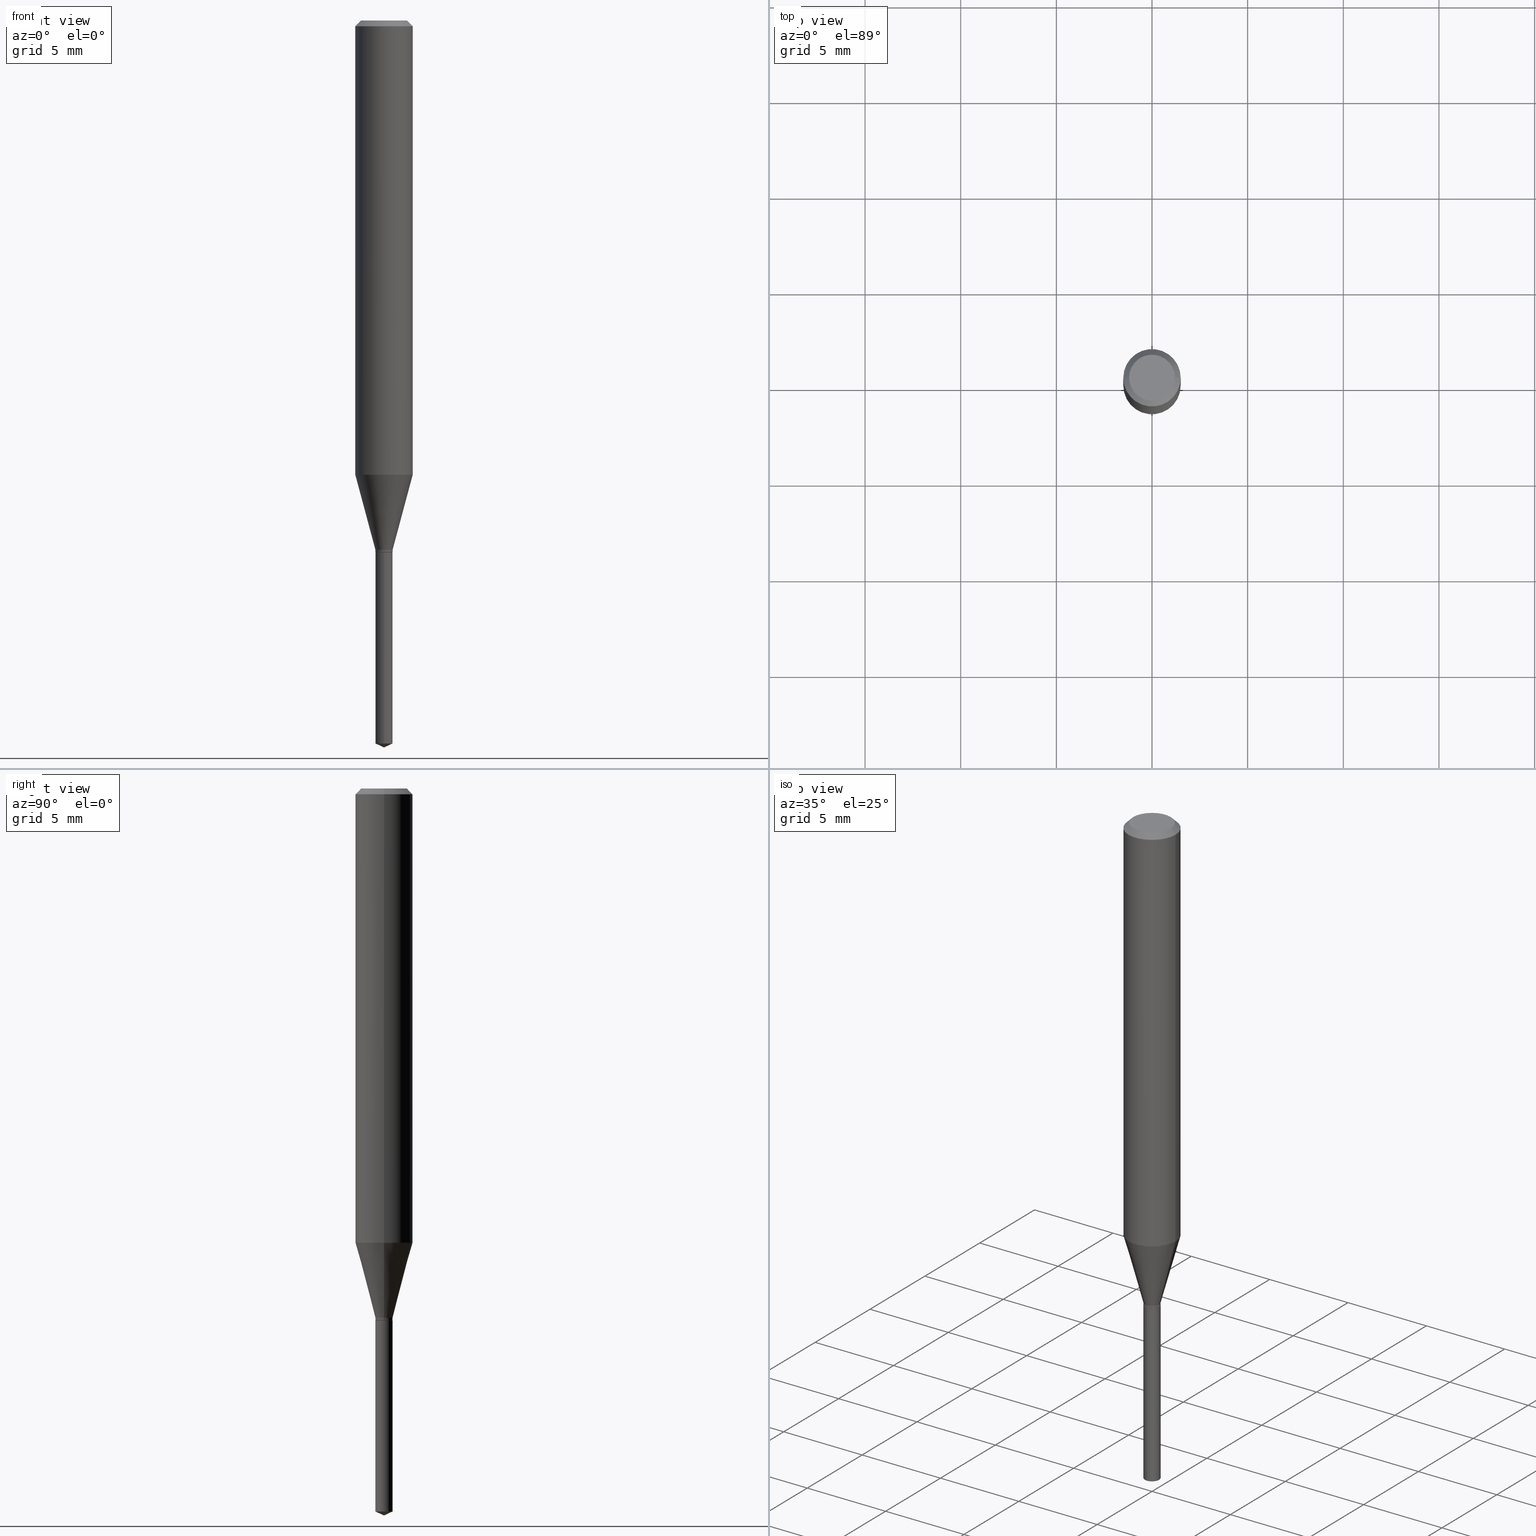
[diagram: canonical four-view strip — front | top / right | iso, engineering-drawing reading convention]
A machine part, canonical four-view strip (front | top / right | iso — engineering-drawing reading convention). The complete STEP part file that produces these views, byte-faithful:
ISO-10303-21;
HEADER;
FILE_DESCRIPTION (( 'STEP AP203' ),
    '1' );
FILE_NAME ('08317.STEP',
    '2024-04-24T14:17:30',
    ( '' ),
    ( '' ),
    'SwSTEP 2.0',
    'SolidWorks 2023',
    '' );
FILE_SCHEMA (( 'CONFIG_CONTROL_DESIGN' ));
ENDSEC;

DATA;
#1 = APPROVAL_PERSON_ORGANIZATION ( #456, #294, #237 ) ;
#2 = EDGE_LOOP ( 'NONE', ( #424, #267 ) ) ;
#3 = ORIENTED_EDGE ( 'NONE', *, *, #215, .F. ) ;
#4 = ORIENTED_EDGE ( 'NONE', *, *, #75, .F. ) ;
#5 = EDGE_CURVE ( 'NONE', #321, #193, #170, .T. ) ;
#6 = CALENDAR_DATE ( 2024, 24, 4 ) ;
#7 = ORIENTED_EDGE ( 'NONE', *, *, #345, .F. ) ;
#8 = CIRCLE ( 'NONE', #87, 0.01720000000000000001 ) ;
#9 = AXIS2_PLACEMENT_3D ( 'NONE', #214, #361, #328 ) ;
#10 = PERSON_AND_ORGANIZATION_ROLE ( 'creator' ) ;
#11 = DIRECTION ( 'NONE',  ( 1.000000000000000000, -6.982962677686271444E-15, 0.000000000000000000 ) ) ;
#12 = FACE_OUTER_BOUND ( 'NONE', #312, .T. ) ;
#13 = CYLINDRICAL_SURFACE ( 'NONE', #298, 0.05905000000000005383 ) ;
#14 = DIRECTION ( 'NONE',  ( -2.445468806185136597E-29, 3.491481338843145583E-15, 1.000000000000000000 ) ) ;
#15 = ADVANCED_FACE ( 'NONE', ( #427 ), #13, .T. ) ;
#16 = CARTESIAN_POINT ( 'NONE',  ( 2.663604623696850789E-29, -3.802921474267954047E-15, -1.089199999999999946 ) ) ;
#17 = CIRCLE ( 'NONE', #309, 0.05905000000000010935 ) ;
#18 = APPROVAL_PERSON_ORGANIZATION ( #347, #34, #86 ) ;
#19 = EDGE_CURVE ( 'NONE', #141, #238, #59, .T. ) ;
#20 = DIRECTION ( 'NONE',  ( -2.445468806185136597E-29, 3.491481338843145583E-15, 1.000000000000000000 ) ) ;
#21 = VERTEX_POINT ( 'NONE', #203 ) ;
#22 = FACE_OUTER_BOUND ( 'NONE', #319, .T. ) ;
#23 = FACE_OUTER_BOUND ( 'NONE', #416, .T. ) ;
#24 = DIRECTION ( 'NONE',  ( -2.445468806185136597E-29, 3.491481338843145583E-15, 1.000000000000000000 ) ) ;
#25 = CARTESIAN_POINT ( 'NONE',  ( 2.676565608369631794E-29, -3.821426325363822773E-15, -1.094499999999999806 ) ) ;
#26 = AXIS2_PLACEMENT_3D ( 'NONE', #28, #144, #182 ) ;
#27 = DIRECTION ( 'NONE',  ( 1.000000000000000000, -6.982962677686270655E-15, 0.000000000000000000 ) ) ;
#28 = CARTESIAN_POINT ( 'NONE',  ( 2.676565608369631794E-29, -3.821426325363822773E-15, -1.094499999999999806 ) ) ;
#29 = EDGE_CURVE ( 'NONE', #45, #377, #430, .T. ) ;
#30 = CALENDAR_DATE ( 2024, 24, 4 ) ;
#31 = FACE_OUTER_BOUND ( 'NONE', #121, .T. ) ;
#32 = FACE_OUTER_BOUND ( 'NONE', #410, .T. ) ;
#33 = CARTESIAN_POINT ( 'NONE',  ( -1.235984393950201427E-16, -0.01770000000000382379, -1.094499999999999806 ) ) ;
#34 = APPROVAL ( #81, 'UNSPECIFIED' ) ;
#35 = APPLICATION_PROTOCOL_DEFINITION ( 'international standard', 'config_control_design', 1994, #489 ) ;
#36 = AXIS2_PLACEMENT_3D ( 'NONE', #205, #14, #303 ) ;
#37 = PRODUCT_DEFINITION_FORMATION_WITH_SPECIFIED_SOURCE ( 'ANY', '', #448, .NOT_KNOWN. ) ;
#38 = LINE ( 'NONE', #443, #49 ) ;
#39 = ORIENTED_EDGE ( 'NONE', *, *, #404, .T. ) ;
#40 = VERTEX_POINT ( 'NONE', #355 ) ;
#41 = COORDINATED_UNIVERSAL_TIME_OFFSET ( 5, 0, .BEHIND. ) ;
#42 = ORIENTED_EDGE ( 'NONE', *, *, #413, .T. ) ;
#43 = CIRCLE ( 'NONE', #36, 0.01770000000000000046 ) ;
#44 = ORIENTED_EDGE ( 'NONE', *, *, #75, .T. ) ;
#45 = VERTEX_POINT ( 'NONE', #206 ) ;
#46 = CALENDAR_DATE ( 2024, 24, 4 ) ;
#47 = ORIENTED_EDGE ( 'NONE', *, *, #5, .F. ) ;
#48 = CONICAL_SURFACE ( 'NONE', #466, 0.01770000000000000046, 0.2617993877991498519 ) ;
#49 = VECTOR ( 'NONE', #115, 39.37007874015748143 ) ;
#50 = DIRECTION ( 'NONE',  ( -2.445460715294871217E-29, 3.491492925458510144E-15, 1.000000000000000000 ) ) ;
#51 = CC_DESIGN_SECURITY_CLASSIFICATION ( #459, ( #37 ) ) ;
#52 = DESIGN_CONTEXT ( 'detailed design', #489, 'design' ) ;
#53 = DIRECTION ( 'NONE',  ( 1.000000000000000000, -6.982962677686267499E-15, 0.000000000000000000 ) ) ;
#54 = EDGE_LOOP ( 'NONE', ( #82, #460, #125 ) ) ;
#55 = DIRECTION ( 'NONE',  ( -2.445468806185136877E-29, 3.491481338843145188E-15, 1.000000000000000000 ) ) ;
#56 = EDGE_LOOP ( 'NONE', ( #163, #455, #240 ) ) ;
#57 = PERSON ( 'UNSPECIFIED', 'UNSPECIFIED', 'UNSPECIFIED', ('UNSPECIFIED'), ('UNSPECIFIED'), ('UNSPECIFIED') ) ;
#58 = CARTESIAN_POINT ( 'NONE',  ( 0.01720000000000000001, -3.941533283420026163E-15, -1.094499999999999806 ) ) ;
#59 = LINE ( 'NONE', #103, #458 ) ;
#60 = ADVANCED_FACE ( 'NONE', ( #364 ), #278, .T. ) ;
#61 = VECTOR ( 'NONE', #369, 39.37007874015748854 ) ;
#62 = DIRECTION ( 'NONE',  ( -6.982962677686265133E-15, -1.000000000000000000, 0.000000000000000000 ) ) ;
#63 = DIRECTION ( 'NONE',  ( 1.000000000000000000, -6.982962677686265922E-15, 4.876176775795935793E-29 ) ) ;
#64 = DIRECTION ( 'NONE',  ( -2.445460715294871217E-29, 3.491492925458510144E-15, 1.000000000000000000 ) ) ;
#65 = CARTESIAN_POINT ( 'NONE',  ( 2.888098660104663328E-31, -4.123439461173779030E-17, -0.01181000000000006871 ) ) ;
#66 = CARTESIAN_POINT ( 'NONE',  ( 3.658671642415649744E-29, -5.223597202677443246E-15, -1.496099999999999985 ) ) ;
#67 = FACE_OUTER_BOUND ( 'NONE', #386, .T. ) ;
#68 = VECTOR ( 'NONE', #211, 39.37007874015748143 ) ;
#69 = CC_DESIGN_APPROVAL ( #294, ( #459 ) ) ;
#70 = CARTESIAN_POINT ( 'NONE',  ( -0.01770000000000000046, -3.677155410038416754E-15, -1.089199999999999946 ) ) ;
#71 = LINE ( 'NONE', #256, #265 ) ;
#72 = DIRECTION ( 'NONE',  ( 1.000000000000000000, -6.982962677686265922E-15, 4.876176775795935232E-29 ) ) ;
#73 = ADVANCED_FACE ( 'NONE', ( #251 ), #48, .T. ) ;
#74 = DIRECTION ( 'NONE',  ( -0.2588190451025211281, 5.211531920934547886E-15, 0.9659258262890679791 ) ) ;
#75 = EDGE_CURVE ( 'NONE', #292, #148, #228, .T. ) ;
#76 = CIRCLE ( 'NONE', #279, 0.01770000000000000046 ) ;
#77 = DIRECTION ( 'NONE',  ( 6.439704144417031142E-15, 0.9063077870366522681, 0.4226182617406943343 ) ) ;
#78 = CONICAL_SURFACE ( 'NONE', #275, 0.05904999999999999832, 0.7853981633974452814 ) ;
#79 = ORIENTED_EDGE ( 'NONE', *, *, #171, .F. ) ;
#80 = CC_DESIGN_PERSON_AND_ORGANIZATION_ASSIGNMENT ( #154, #164, ( #379 ) ) ;
#81 = APPROVAL_STATUS ( 'not_yet_approved' ) ;
#82 = ORIENTED_EDGE ( 'NONE', *, *, #426, .F. ) ;
#83 = APPROVAL_DATE_TIME ( #411, #294 ) ;
#84 = ORIENTED_EDGE ( 'NONE', *, *, #212, .T. ) ;
#85 = EDGE_LOOP ( 'NONE', ( #317, #452, #350, #338 ) ) ;
#86 = APPROVAL_ROLE ( '' ) ;
#87 = AXIS2_PLACEMENT_3D ( 'NONE', #25, #342, #487 ) ;
#88 = VECTOR ( 'NONE', #74, 39.37007874015748854 ) ;
#89 = ORIENTED_EDGE ( 'NONE', *, *, #454, .F. ) ;
#90 = PERSON_AND_ORGANIZATION ( #57, #106 ) ;
#91 = EDGE_LOOP ( 'NONE', ( #438, #274, #327, #231 ) ) ;
#92 = PERSON_AND_ORGANIZATION_ROLE ( 'classification_officer' ) ;
#93 = DIRECTION ( 'NONE',  ( -2.445468806185136597E-29, 3.491481338843145583E-15, 1.000000000000000000 ) ) ;
#94 = MANIFOLD_SOLID_BREP ( 'Body-Move/Copy2[2]', #259 ) ;
#95 = EDGE_CURVE ( 'NONE', #45, #213, #143, .T. ) ;
#96 = DIRECTION ( 'NONE',  ( 1.000000000000000000, -6.982962677686266711E-15, 4.876185090822587894E-29 ) ) ;
#97 = AXIS2_PLACEMENT_3D ( 'NONE', #184, #336, #112 ) ;
#98 = ORIENTED_EDGE ( 'NONE', *, *, #191, .T. ) ;
#99 = CARTESIAN_POINT ( 'NONE',  ( 2.676565608369631794E-29, -3.821426325363822773E-15, -1.094499999999999806 ) ) ;
#100 = CARTESIAN_POINT ( 'NONE',  ( -0.01770000000000000046, 1.257660642295377361E-16, -8.706515109751182648E-31 ) ) ;
#101 = CARTESIAN_POINT ( 'NONE',  ( 2.663604623696850789E-29, -3.802921474267954047E-15, -1.089199999999999946 ) ) ;
#102 = ADVANCED_FACE ( 'NONE', ( #23 ), #325, .F. ) ;
#103 = CARTESIAN_POINT ( 'NONE',  ( 0.05904999999999999832, -4.463468013801466955E-16, -0.01181000000000006871 ) ) ;
#104 = FACE_OUTER_BOUND ( 'NONE', #185, .T. ) ;
#105 = DIRECTION ( 'NONE',  ( 0.7071067811865453523, -7.319954787623248157E-15, -0.7071067811865496822 ) ) ;
#106 = ORGANIZATION ( 'UNSPECIFIED', 'UNSPECIFIED', '' ) ;
#107 = CARTESIAN_POINT ( 'NONE',  ( 3.638478665683164429E-29, -5.194792339183186324E-15, -1.487846354450656605 ) ) ;
#108 = CARTESIAN_POINT ( 'NONE',  ( 0.05905000000000005383, -4.123439461173744271E-16, 2.879382386107502672E-30 ) ) ;
#109 =( NAMED_UNIT ( * ) SI_UNIT ( $, .STERADIAN. ) SOLID_ANGLE_UNIT ( ) );
#110 = CARTESIAN_POINT ( 'NONE',  ( 0.04724000000000000421, -3.852183633974369345E-16, -3.380025165621689721E-19 ) ) ;
#111 = DIRECTION ( 'NONE',  ( 1.000000000000000000, -6.982962677686266711E-15, 4.876176775795935793E-29 ) ) ;
#112 = DIRECTION ( 'NONE',  ( 1.000000000000000000, -6.982962677686266711E-15, 0.000000000000000000 ) ) ;
#113 = ADVANCED_FACE ( 'NONE', ( #135 ), #179, .T. ) ;
#114 = CIRCLE ( 'NONE', #389, 0.01770000000000000046 ) ;
#115 = DIRECTION ( 'NONE',  ( -2.445460715294871217E-29, 3.491492925458510144E-15, 1.000000000000000000 ) ) ;
#116 = DIRECTION ( 'NONE',  ( 1.000000000000000000, -6.982962677686265922E-15, 4.876176775795935232E-29 ) ) ;
#117 = LINE ( 'NONE', #70, #88 ) ;
#118 = DIRECTION ( 'NONE',  ( -2.445468806185136597E-29, 3.491481338843145583E-15, 1.000000000000000000 ) ) ;
#119 = AXIS2_PLACEMENT_3D ( 'NONE', #258, #437, #155 ) ;
#120 = AXIS2_PLACEMENT_3D ( 'NONE', #470, #425, #356 ) ;
#121 = EDGE_LOOP ( 'NONE', ( #42, #122, #378, #89 ) ) ;
#122 = ORIENTED_EDGE ( 'NONE', *, *, #29, .T. ) ;
#123 = COORDINATED_UNIVERSAL_TIME_OFFSET ( 5, 0, .BEHIND. ) ;
#124 = EDGE_LOOP ( 'NONE', ( #7, #197, #239, #79 ) ) ;
#125 = ORIENTED_EDGE ( 'NONE', *, *, #307, .F. ) ;
#126 = VERTEX_POINT ( 'NONE', #401 ) ;
#127 = VERTEX_POINT ( 'NONE', #296 ) ;
#128 = AXIS2_PLACEMENT_3D ( 'NONE', #297, #480, #27 ) ;
#129 = ORIENTED_EDGE ( 'NONE', *, *, #368, .F. ) ;
#130 = EDGE_CURVE ( 'NONE', #281, #414, #17, .T. ) ;
#131 = DIRECTION ( 'NONE',  ( 1.000000000000000000, -6.982962677686266711E-15, 4.876176775795935793E-29 ) ) ;
#132 = CARTESIAN_POINT ( 'NONE',  ( -0.05905000000000010935, -2.844539538029139057E-15, -0.9348796991070267293 ) ) ;
#133 = VECTOR ( 'NONE', #50, 39.37007874015748143 ) ;
#134 = AXIS2_PLACEMENT_3D ( 'NONE', #176, #331, #207 ) ;
#135 = FACE_OUTER_BOUND ( 'NONE', #165, .T. ) ;
#136 = CARTESIAN_POINT ( 'NONE',  ( 3.638478665683164429E-29, -5.194792339183186324E-15, -1.487846354450656605 ) ) ;
#137 = ORIENTED_EDGE ( 'NONE', *, *, #334, .T. ) ;
#138 = ADVANCED_FACE ( 'NONE', ( #435 ), #484, .F. ) ;
#139 = LINE ( 'NONE', #178, #68 ) ;
#140 = EDGE_CURVE ( 'NONE', #148, #292, #8, .T. ) ;
#141 = VERTEX_POINT ( 'NONE', #110 ) ;
#142 = CARTESIAN_POINT ( 'NONE',  ( 8.265746106709734507E-48, -1.180129479067563789E-33, -3.380025165646692144E-19 ) ) ;
#143 = CIRCLE ( 'NONE', #406, 0.01770000000000000046 ) ;
#144 = DIRECTION ( 'NONE',  ( -2.445460715294871217E-29, 3.491492925458510144E-15, 1.000000000000000000 ) ) ;
#145 = AXIS2_PLACEMENT_3D ( 'NONE', #390, #324, #62 ) ;
#146 = LOCAL_TIME ( 10, 17, 30.00000000000000000, #41 ) ;
#147 = DIRECTION ( 'NONE',  ( -2.445460715294871217E-29, 3.491492925458510144E-15, 1.000000000000000000 ) ) ;
#148 = VERTEX_POINT ( 'NONE', #302 ) ;
#149 = LINE ( 'NONE', #108, #310 ) ;
#150 =( LENGTH_UNIT ( ) NAMED_UNIT ( * ) SI_UNIT ( $, .METRE. ) );
#151 = DIRECTION ( 'NONE',  ( -2.445468806185136597E-29, 3.491481338843145583E-15, 1.000000000000000000 ) ) ;
#152 = ORIENTED_EDGE ( 'NONE', *, *, #454, .T. ) ;
#153 = ORIENTED_EDGE ( 'NONE', *, *, #428, .T. ) ;
#154 = PERSON_AND_ORGANIZATION ( #57, #106 ) ;
#155 = DIRECTION ( 'NONE',  ( -1.000000000000000000, 6.982962677686265922E-15, -4.876176775795935793E-29 ) ) ;
#156 = FACE_OUTER_BOUND ( 'NONE', #446, .T. ) ;
#157 = DIRECTION ( 'NONE',  ( 0.7071067811865218156, -2.468850131081987665E-15, 0.7071067811865732189 ) ) ;
#158 = CYLINDRICAL_SURFACE ( 'NONE', #382, 0.05905000000000005383 ) ;
#159 = CC_DESIGN_DATE_AND_TIME_ASSIGNMENT ( #354, #198, ( #459 ) ) ;
#160 = ORIENTED_EDGE ( 'NONE', *, *, #457, .T. ) ;
#161 = CIRCLE ( 'NONE', #26, 0.01770000000000000046 ) ;
#162 = COORDINATED_UNIVERSAL_TIME_OFFSET ( 5, 0, .BEHIND. ) ;
#163 = ORIENTED_EDGE ( 'NONE', *, *, #252, .F. ) ;
#164 = PERSON_AND_ORGANIZATION_ROLE ( 'creator' ) ;
#165 = EDGE_LOOP ( 'NONE', ( #366, #447, #152, #473 ) ) ;
#166 = CC_DESIGN_PERSON_AND_ORGANIZATION_ASSIGNMENT ( #403, #488, ( #448 ) ) ;
#167 = EDGE_CURVE ( 'NONE', #292, #213, #71, .T. ) ;
#168 = CARTESIAN_POINT ( 'NONE',  ( 2.676565608369631794E-29, -3.821426325363822773E-15, -1.094499999999999806 ) ) ;
#169 = CYLINDRICAL_SURFACE ( 'NONE', #486, 0.01770000000000000046 ) ;
#170 = LINE ( 'NONE', #283, #133 ) ;
#171 = EDGE_CURVE ( 'NONE', #412, #238, #227, .T. ) ;
#172 = LINE ( 'NONE', #282, #300 ) ;
#173 = CONICAL_SURFACE ( 'NONE', #128, 0.01720000000000000001, 0.7853981633974119747 ) ;
#174 = DIRECTION ( 'NONE',  ( -2.445468806185136597E-29, 3.491481338843145583E-15, 1.000000000000000000 ) ) ;
#175 = ADVANCED_FACE ( 'NONE', ( #333 ), #360, .T. ) ;
#176 = CARTESIAN_POINT ( 'NONE',  ( -9.261931828548885815E-28, 1.322367415117763772E-13, 37.87397874015748300 ) ) ;
#177 = DIRECTION ( 'NONE',  ( 1.000000000000000000, -6.982962677686271444E-15, 0.000000000000000000 ) ) ;
#178 = CARTESIAN_POINT ( 'NONE',  ( -0.05904999999999999832, 3.711095515056362547E-16, -0.01181000000000006871 ) ) ;
#179 = CYLINDRICAL_SURFACE ( 'NONE', #199, 0.01770000000000000046 ) ;
#180 = CARTESIAN_POINT ( 'NONE',  ( 2.676565608369631794E-29, -3.821426325363822773E-15, -1.094499999999999806 ) ) ;
#181 = AXIS2_PLACEMENT_3D ( 'NONE', #65, #151, #433 ) ;
#182 = DIRECTION ( 'NONE',  ( -6.982962677686265133E-15, -1.000000000000000000, 0.000000000000000000 ) ) ;
#183 = ADVANCED_FACE ( 'NONE', ( #67 ), #236, .T. ) ;
#184 = CARTESIAN_POINT ( 'NONE',  ( 2.888098660104663328E-31, -4.123439461173779030E-17, -0.01181000000000006871 ) ) ;
#185 = EDGE_LOOP ( 'NONE', ( #420, #451, #272, #419 ) ) ;
#186 = CYLINDRICAL_SURFACE ( 'NONE', #439, 0.01770000000000000046 ) ;
#187 = CARTESIAN_POINT ( 'NONE',  ( 0.05904999999999999832, -4.535783407291118600E-16, -0.01181000000000006871 ) ) ;
#188 = VECTOR ( 'NONE', #77, 39.37007874015748143 ) ;
#189 = CC_DESIGN_APPROVAL ( #34, ( #37 ) ) ;
#190 = LINE ( 'NONE', #226, #323 ) ;
#191 = EDGE_CURVE ( 'NONE', #21, #414, #374, .T. ) ;
#192 = DATE_AND_TIME ( #273, #469 ) ;
#193 = VERTEX_POINT ( 'NONE', #33 ) ;
#194 = AXIS2_PLACEMENT_3D ( 'NONE', #142, #24, #286 ) ;
#195 = EDGE_LOOP ( 'NONE', ( #84, #160 ) ) ;
#196 = ORIENTED_EDGE ( 'NONE', *, *, #167, .F. ) ;
#197 = ORIENTED_EDGE ( 'NONE', *, *, #130, .T. ) ;
#198 = DATE_TIME_ROLE ( 'classification_date' ) ;
#199 = AXIS2_PLACEMENT_3D ( 'NONE', #276, #93, #72 ) ;
#200 = AXIS2_PLACEMENT_3D ( 'NONE', #299, #395, #225 ) ;
#201 = ORIENTED_EDGE ( 'NONE', *, *, #140, .F. ) ;
#202 = DIRECTION ( 'NONE',  ( -6.982962677686265133E-15, -1.000000000000000000, 0.000000000000000000 ) ) ;
#203 = CARTESIAN_POINT ( 'NONE',  ( 0.01770000000000000046, -3.926519913663001232E-15, -1.089199999999999946 ) ) ;
#204 = PRODUCT_RELATED_PRODUCT_CATEGORY ( 'detail', '', ( #448 ) ) ;
#205 = CARTESIAN_POINT ( 'NONE',  ( 2.675342873966538993E-29, -3.819680584694400481E-15, -1.093999999999999861 ) ) ;
#206 = CARTESIAN_POINT ( 'NONE',  ( -0.01770000000000000046, -3.685534965251639971E-15, -1.093999999999999861 ) ) ;
#207 = DIRECTION ( 'NONE',  ( -6.982962677686266711E-15, -1.000000000000000000, 3.520397390770449137E-15 ) ) ;
#208 = AXIS2_PLACEMENT_3D ( 'NONE', #291, #241, #53 ) ;
#209 = CARTESIAN_POINT ( 'NONE',  ( 2.663604623696850789E-29, -3.802921474267954047E-15, -1.089199999999999946 ) ) ;
#210 = CC_DESIGN_DATE_AND_TIME_ASSIGNMENT ( #417, #268, ( #379 ) ) ;
#211 = DIRECTION ( 'NONE',  ( -0.7071067811865453523, 2.468850131082234184E-15, -0.7071067811865496822 ) ) ;
#212 = EDGE_CURVE ( 'NONE', #193, #40, #161, .T. ) ;
#213 = VERTEX_POINT ( 'NONE', #481 ) ;
#214 = CARTESIAN_POINT ( 'NONE',  ( 2.676565608369631794E-29, -3.821426325363822773E-15, -1.094499999999999806 ) ) ;
#215 = EDGE_CURVE ( 'NONE', #414, #238, #149, .T. ) ;
#216 = DIRECTION ( 'NONE',  ( -2.445468806185136597E-29, 3.491481338843145583E-15, 1.000000000000000000 ) ) ;
#217 = DIMENSIONAL_EXPONENTS ( 1.000000000000000000, 0.000000000000000000, 0.000000000000000000, 0.000000000000000000, 0.000000000000000000, 0.000000000000000000, 0.000000000000000000 ) ;
#218 = CARTESIAN_POINT ( 'NONE',  ( 0.000000000000000000, 0.000000000000000000, 0.000000000000000000 ) ) ;
#219 = DIRECTION ( 'NONE',  ( 2.445468806185136597E-29, -3.491481338843145583E-15, -1.000000000000000000 ) ) ;
#220 = CIRCLE ( 'NONE', #97, 0.05904999999999999832 ) ;
#221 = LOCAL_TIME ( 10, 17, 30.00000000000000000, #295 ) ;
#222 = APPLICATION_PROTOCOL_DEFINITION ( 'international standard', 'config_control_design', 1994, #462 ) ;
#223 = DIRECTION ( 'NONE',  ( -1.000000000000000000, 6.982962677686266711E-15, 0.000000000000000000 ) ) ;
#224 = DIRECTION ( 'NONE',  ( 0.000000000000000000, 0.000000000000000000, 1.000000000000000000 ) ) ;
#225 = DIRECTION ( 'NONE',  ( -6.982962677686266711E-15, -1.000000000000000000, 3.520397390770449137E-15 ) ) ;
#226 = CARTESIAN_POINT ( 'NONE',  ( 0.01770000000000000046, -1.235984393950469147E-16, 8.630832893158805849E-31 ) ) ;
#227 = CIRCLE ( 'NONE', #181, 0.05904999999999999832 ) ;
#228 = CIRCLE ( 'NONE', #330, 0.01720000000000000001 ) ;
#229 = EDGE_LOOP ( 'NONE', ( #408, #137, #98, #245 ) ) ;
#230 = CARTESIAN_POINT ( 'NONE',  ( 2.676565608369631794E-29, -3.821426325363822773E-15, -1.094499999999999806 ) ) ;
#231 = ORIENTED_EDGE ( 'NONE', *, *, #191, .F. ) ;
#232 = EDGE_CURVE ( 'NONE', #238, #412, #220, .T. ) ;
#233 = SHAPE_DEFINITION_REPRESENTATION ( #247, #453 ) ;
#234 = ORIENTED_EDGE ( 'NONE', *, *, #413, .F. ) ;
#235 = VECTOR ( 'NONE', #277, 39.37007874015748143 ) ;
#236 = CONICAL_SURFACE ( 'NONE', #431, 0.05904999999999999832, 0.7853981633974452814 ) ;
#237 = APPROVAL_ROLE ( '' ) ;
#238 = VERTEX_POINT ( 'NONE', #187 ) ;
#239 = ORIENTED_EDGE ( 'NONE', *, *, #215, .T. ) ;
#240 = ORIENTED_EDGE ( 'NONE', *, *, #402, .F. ) ;
#241 = DIRECTION ( 'NONE',  ( -2.445468806185136597E-29, 3.491481338843145583E-15, 1.000000000000000000 ) ) ;
#242 = CC_DESIGN_PERSON_AND_ORGANIZATION_ASSIGNMENT ( #418, #92, ( #459 ) ) ;
#243 = ORIENTED_EDGE ( 'NONE', *, *, #313, .F. ) ;
#244 = DIRECTION ( 'NONE',  ( -6.982962677686265133E-15, -1.000000000000000000, 0.000000000000000000 ) ) ;
#245 = ORIENTED_EDGE ( 'NONE', *, *, #130, .F. ) ;
#246 = LINE ( 'NONE', #464, #353 ) ;
#247 = PRODUCT_DEFINITION_SHAPE ( 'NONE', 'NONE',  #379 ) ;
#248 = DIRECTION ( 'NONE',  ( 1.000000000000000000, -6.982962677686270655E-15, 0.000000000000000000 ) ) ;
#249 = CYLINDRICAL_SURFACE ( 'NONE', #145, 0.01770000000000000046 ) ;
#250 = CIRCLE ( 'NONE', #467, 0.01770000000000000046 ) ;
#251 = FACE_OUTER_BOUND ( 'NONE', #229, .T. ) ;
#252 = EDGE_CURVE ( 'NONE', #126, #321, #289, .T. ) ;
#253 = MANIFOLD_SOLID_BREP ( 'Body-Move/Copy2[1]', #396 ) ;
#254 = ADVANCED_FACE ( 'NONE', ( #31 ), #186, .T. ) ;
#255 = DIRECTION ( 'NONE',  ( -1.000000000000000000, 6.982962677686266711E-15, 0.000000000000000000 ) ) ;
#256 = CARTESIAN_POINT ( 'NONE',  ( 0.01720000000000000001, -3.941533283420026163E-15, -1.094499999999999806 ) ) ;
#257 = APPROVAL_ROLE ( '' ) ;
#258 = CARTESIAN_POINT ( 'NONE',  ( 4.132873053354867254E-48, -5.900647395337818946E-34, -1.690012582823346072E-19 ) ) ;
#259 = CLOSED_SHELL ( 'NONE', ( #468, #183, #461, #60, #254, #113, #73, #15, #270, #138, #102, #318 ) ) ;
#260 = DIRECTION ( 'NONE',  ( -6.328713451373376478E-15, -0.9063077870366493816, 0.4226182617407006070 ) ) ;
#261 = CIRCLE ( 'NONE', #208, 0.05905000000000010935 ) ;
#262 =( NAMED_UNIT ( * ) PLANE_ANGLE_UNIT ( ) SI_UNIT ( $, .RADIAN. ) );
#263 = FACE_OUTER_BOUND ( 'NONE', #85, .T. ) ;
#264 = LENGTH_MEASURE_WITH_UNIT ( LENGTH_MEASURE( 0.02539999999999999897 ), #150 );
#265 = VECTOR ( 'NONE', #157, 39.37007874015748143 ) ;
#266 = APPROVAL_PERSON_ORGANIZATION ( #434, #304, #257 ) ;
#267 = ORIENTED_EDGE ( 'NONE', *, *, #368, .T. ) ;
#268 = DATE_TIME_ROLE ( 'creation_date' ) ;
#269 = UNCERTAINTY_MEASURE_WITH_UNIT (LENGTH_MEASURE( 1.000000000000000082E-05 ), #441, 'distance_accuracy_value', 'NONE');
#270 = ADVANCED_FACE ( 'NONE', ( #263 ), #78, .T. ) ;
#271 = APPROVAL_STATUS ( 'not_yet_approved' ) ;
#272 = ORIENTED_EDGE ( 'NONE', *, *, #167, .T. ) ;
#273 = CALENDAR_DATE ( 2024, 24, 4 ) ;
#274 = ORIENTED_EDGE ( 'NONE', *, *, #450, .T. ) ;
#275 = AXIS2_PLACEMENT_3D ( 'NONE', #387, #367, #255 ) ;
#276 = CARTESIAN_POINT ( 'NONE',  ( 0.000000000000000000, 0.000000000000000000, 0.000000000000000000 ) ) ;
#277 = DIRECTION ( 'NONE',  ( -2.445468806185136877E-29, 3.491481338843145188E-15, 1.000000000000000000 ) ) ;
#278 = CONICAL_SURFACE ( 'NONE', #315, 0.01770000000000000046, 0.2617993877991498519 ) ;
#279 = AXIS2_PLACEMENT_3D ( 'NONE', #136, #64, #472 ) ;
#280 = CARTESIAN_POINT ( 'NONE',  ( 8.265746106709734507E-48, -1.180129479067563789E-33, -3.380025165646692144E-19 ) ) ;
#281 = VERTEX_POINT ( 'NONE', #132 ) ;
#282 = CARTESIAN_POINT ( 'NONE',  ( -0.01720000000000000001, -3.699212974813084802E-15, -1.094499999999999806 ) ) ;
#283 = CARTESIAN_POINT ( 'NONE',  ( -1.235984393950201427E-16, -0.01770000000000382379, -1.094499999999999806 ) ) ;
#284 = DIRECTION ( 'NONE',  ( -0.7071067811865218156, 7.493145998870261075E-15, 0.7071067811865732189 ) ) ;
#285 = DIRECTION ( 'NONE',  ( 1.000000000000000000, -6.982962677686271444E-15, 0.000000000000000000 ) ) ;
#286 = DIRECTION ( 'NONE',  ( 1.000000000000000000, -6.982962677686266711E-15, 4.876185090822587894E-29 ) ) ;
#287 = AXIS2_PLACEMENT_3D ( 'NONE', #280, #423, #96 ) ;
#288 = CONICAL_SURFACE ( 'NONE', #332, 0.01720000000000000001, 0.7853981633974119747 ) ;
#289 = LINE ( 'NONE', #373, #421 ) ;
#290 = CC_DESIGN_APPROVAL ( #304, ( #379 ) ) ;
#291 = CARTESIAN_POINT ( 'NONE',  ( 2.286219141701980490E-29, -3.264115023495478945E-15, -0.9348796991070267293 ) ) ;
#292 = VERTEX_POINT ( 'NONE', #58 ) ;
#293 = DIRECTION ( 'NONE',  ( -2.445468806185136877E-29, 3.491481338843145188E-15, 1.000000000000000000 ) ) ;
#294 = APPROVAL ( #271, 'UNSPECIFIED' ) ;
#295 = COORDINATED_UNIVERSAL_TIME_OFFSET ( 5, 0, .BEHIND. ) ;
#296 = CARTESIAN_POINT ( 'NONE',  ( -0.04724000000000000421, 3.504923541997677355E-16, -3.380025165670481712E-19 ) ) ;
#297 = CARTESIAN_POINT ( 'NONE',  ( 2.676565608369631794E-29, -3.821426325363822773E-15, -1.094499999999999806 ) ) ;
#298 = AXIS2_PLACEMENT_3D ( 'NONE', #465, #174, #131 ) ;
#299 = CARTESIAN_POINT ( 'NONE',  ( -9.261931828548885815E-28, 1.322367415117763772E-13, 37.87397874015748300 ) ) ;
#300 = VECTOR ( 'NONE', #284, 39.37007874015748143 ) ;
#301 = MECHANICAL_CONTEXT ( 'NONE', #462, 'mechanical' ) ;
#302 = CARTESIAN_POINT ( 'NONE',  ( -0.01720000000000000001, -3.696563747638974390E-15, -1.094499999999999806 ) ) ;
#303 = DIRECTION ( 'NONE',  ( 1.000000000000000000, -6.982962677686271444E-15, 0.000000000000000000 ) ) ;
#304 = APPROVAL ( #397, 'UNSPECIFIED' ) ;
#305 = EDGE_CURVE ( 'NONE', #148, #45, #172, .T. ) ;
#306 = ORIENTED_EDGE ( 'NONE', *, *, #305, .T. ) ;
#307 = EDGE_CURVE ( 'NONE', #388, #321, #76, .T. ) ;
#308 = CALENDAR_DATE ( 2024, 24, 4 ) ;
#309 = AXIS2_PLACEMENT_3D ( 'NONE', #372, #216, #394 ) ;
#310 = VECTOR ( 'NONE', #293, 39.37007874015748143 ) ;
#311 = PERSON_AND_ORGANIZATION ( #57, #106 ) ;
#312 = EDGE_LOOP ( 'NONE', ( #391, #471, #482, #314 ) ) ;
#313 = EDGE_CURVE ( 'NONE', #127, #412, #139, .T. ) ;
#314 = ORIENTED_EDGE ( 'NONE', *, *, #457, .F. ) ;
#315 = AXIS2_PLACEMENT_3D ( 'NONE', #209, #359, #11 ) ;
#316 =( GEOMETRIC_REPRESENTATION_CONTEXT ( 3 ) GLOBAL_UNCERTAINTY_ASSIGNED_CONTEXT ( ( #269 ) ) GLOBAL_UNIT_ASSIGNED_CONTEXT ( ( #441, #262, #109 ) ) REPRESENTATION_CONTEXT ( 'NONE', 'WORKASPACE' ) );
#317 = ORIENTED_EDGE ( 'NONE', *, *, #19, .F. ) ;
#318 = ADVANCED_FACE ( 'NONE', ( #104 ), #288, .T. ) ;
#319 = EDGE_LOOP ( 'NONE', ( #352, #153, #381, #47 ) ) ;
#320 = DIRECTION ( 'NONE',  ( -2.445460715294871217E-29, 3.491492925458510144E-15, 1.000000000000000000 ) ) ;
#321 = VERTEX_POINT ( 'NONE', #393 ) ;
#322 = AXIS2_PLACEMENT_3D ( 'NONE', #463, #475, #63 ) ;
#323 = VECTOR ( 'NONE', #400, 39.37007874015748143 ) ;
#324 = DIRECTION ( 'NONE',  ( -2.445460715294871217E-29, 3.491492925458510144E-15, 1.000000000000000000 ) ) ;
#325 = PLANE ( 'NONE',  #322 ) ;
#326 = DIRECTION ( 'NONE',  ( 1.000000000000000000, -6.982962677686271444E-15, 0.000000000000000000 ) ) ;
#327 = ORIENTED_EDGE ( 'NONE', *, *, #404, .F. ) ;
#328 = DIRECTION ( 'NONE',  ( 6.982962677686265922E-15, 1.000000000000000000, -3.491492925458510144E-15 ) ) ;
#329 = DIRECTION ( 'NONE',  ( -2.445468806185136597E-29, 3.491481338843145583E-15, 1.000000000000000000 ) ) ;
#330 = AXIS2_PLACEMENT_3D ( 'NONE', #168, #384, #248 ) ;
#331 = DIRECTION ( 'NONE',  ( -2.445460715294871217E-29, 3.491492925458510144E-15, 1.000000000000000000 ) ) ;
#332 = AXIS2_PLACEMENT_3D ( 'NONE', #180, #358, #365 ) ;
#333 = FACE_OUTER_BOUND ( 'NONE', #54, .T. ) ;
#334 = EDGE_CURVE ( 'NONE', #377, #21, #371, .T. ) ;
#335 = LINE ( 'NONE', #66, #188 ) ;
#336 = DIRECTION ( 'NONE',  ( -2.445468806185136597E-29, 3.491481338843145583E-15, 1.000000000000000000 ) ) ;
#337 = ADVANCED_FACE ( 'NONE', ( #383 ), #349, .T. ) ;
#338 = ORIENTED_EDGE ( 'NONE', *, *, #171, .T. ) ;
#339 = DATE_AND_TIME ( #30, #221 ) ;
#340 = ADVANCED_FACE ( 'NONE', ( #477 ), #429, .F. ) ;
#341 = CARTESIAN_POINT ( 'NONE',  ( 0.000000000000000000, 0.000000000000000000, 0.000000000000000000 ) ) ;
#342 = DIRECTION ( 'NONE',  ( -2.445468806185136597E-29, 3.491481338843145583E-15, 1.000000000000000000 ) ) ;
#343 = DIRECTION ( 'NONE',  ( -6.982962677686265133E-15, -1.000000000000000000, 0.000000000000000000 ) ) ;
#344 = EDGE_CURVE ( 'NONE', #21, #377, #250, .T. ) ;
#345 = EDGE_CURVE ( 'NONE', #281, #412, #246, .T. ) ;
#346 = CARTESIAN_POINT ( 'NONE',  ( 0.000000000000000000, 0.000000000000000000, 0.000000000000000000 ) ) ;
#347 = PERSON_AND_ORGANIZATION ( #57, #106 ) ;
#348 = ORIENTED_EDGE ( 'NONE', *, *, #345, .T. ) ;
#349 = CONICAL_SURFACE ( 'NONE', #134, 84.42940631927444883, 1.134464013796316451 ) ;
#350 = ORIENTED_EDGE ( 'NONE', *, *, #313, .T. ) ;
#351 = ORIENTED_EDGE ( 'NONE', *, *, #232, .T. ) ;
#352 = ORIENTED_EDGE ( 'NONE', *, *, #402, .T. ) ;
#353 = VECTOR ( 'NONE', #55, 39.37007874015748143 ) ;
#354 = DATE_AND_TIME ( #6, #362 ) ;
#355 = CARTESIAN_POINT ( 'NONE',  ( 1.257660642295741470E-16, 0.01769999999999617712, -1.094499999999999806 ) ) ;
#356 = DIRECTION ( 'NONE',  ( 1.000000000000000000, -6.982962677686271444E-15, 0.000000000000000000 ) ) ;
#357 = DIRECTION ( 'NONE',  ( -2.445468806185136597E-29, 3.491481338843145583E-15, 1.000000000000000000 ) ) ;
#358 = DIRECTION ( 'NONE',  ( -2.445468806185136597E-29, 3.491481338843145583E-15, 1.000000000000000000 ) ) ;
#359 = DIRECTION ( 'NONE',  ( -2.445468806185136597E-29, 3.491481338843145583E-15, 1.000000000000000000 ) ) ;
#360 = CONICAL_SURFACE ( 'NONE', #200, 84.42940631927444883, 1.134464013796316451 ) ;
#361 = DIRECTION ( 'NONE',  ( 2.445460715294871217E-29, -3.491492925458510144E-15, -1.000000000000000000 ) ) ;
#362 = LOCAL_TIME ( 10, 17, 30.00000000000000000, #123 ) ;
#363 = ADVANCED_FACE ( 'NONE', ( #22 ), #249, .T. ) ;
#364 = FACE_OUTER_BOUND ( 'NONE', #91, .T. ) ;
#365 = DIRECTION ( 'NONE',  ( 1.000000000000000000, -6.982962677686270655E-15, 0.000000000000000000 ) ) ;
#366 = ORIENTED_EDGE ( 'NONE', *, *, #29, .F. ) ;
#367 = DIRECTION ( 'NONE',  ( 2.445468806185136597E-29, -3.491481338843145583E-15, -1.000000000000000000 ) ) ;
#368 = EDGE_CURVE ( 'NONE', #141, #127, #476, .T. ) ;
#369 = DIRECTION ( 'NONE',  ( 0.2588190451025211281, 1.565188264969622954E-15, 0.9659258262890679791 ) ) ;
#370 = DIRECTION ( 'NONE',  ( -2.445460715294871217E-29, 3.491492925458510144E-15, 1.000000000000000000 ) ) ;
#371 = CIRCLE ( 'NONE', #120, 0.01770000000000000046 ) ;
#372 = CARTESIAN_POINT ( 'NONE',  ( 2.286219141701980490E-29, -3.264115023495478945E-15, -0.9348796991070267293 ) ) ;
#373 = CARTESIAN_POINT ( 'NONE',  ( 3.658653776152657051E-29, -5.223622565778476142E-15, -1.496099999999999985 ) ) ;
#374 = LINE ( 'NONE', #479, #61 ) ;
#375 = ORIENTED_EDGE ( 'NONE', *, *, #19, .T. ) ;
#376 = ORIENTED_EDGE ( 'NONE', *, *, #232, .F. ) ;
#377 = VERTEX_POINT ( 'NONE', #474 ) ;
#378 = ORIENTED_EDGE ( 'NONE', *, *, #344, .F. ) ;
#379 = PRODUCT_DEFINITION ( 'UNKNOWN', '', #37, #52 ) ;
#380 = EDGE_CURVE ( 'NONE', #127, #141, #398, .T. ) ;
#381 = ORIENTED_EDGE ( 'NONE', *, *, #212, .F. ) ;
#382 = AXIS2_PLACEMENT_3D ( 'NONE', #218, #118, #111 ) ;
#383 = FACE_OUTER_BOUND ( 'NONE', #56, .T. ) ;
#384 = DIRECTION ( 'NONE',  ( -2.445468806185136597E-29, 3.491481338843145583E-15, 1.000000000000000000 ) ) ;
#385 = CARTESIAN_POINT ( 'NONE',  ( -0.05904999999999999832, -1.233099223587268252E-15, -0.01181000000000006871 ) ) ;
#386 = EDGE_LOOP ( 'NONE', ( #129, #375, #351, #243 ) ) ;
#387 = CARTESIAN_POINT ( 'NONE',  ( 2.888098660104663328E-31, -4.123439461173779030E-17, -0.01181000000000006871 ) ) ;
#388 = VERTEX_POINT ( 'NONE', #432 ) ;
#389 = AXIS2_PLACEMENT_3D ( 'NONE', #230, #370, #343 ) ;
#390 = CARTESIAN_POINT ( 'NONE',  ( 2.676565608369631794E-29, -3.821426325363822773E-15, -1.094499999999999806 ) ) ;
#391 = ORIENTED_EDGE ( 'NONE', *, *, #428, .F. ) ;
#392 = CARTESIAN_POINT ( 'NONE',  ( 2.675342873966538993E-29, -3.819680584694400481E-15, -1.093999999999999861 ) ) ;
#393 = CARTESIAN_POINT ( 'NONE',  ( -1.235984393950105285E-16, -0.01770000000000519769, -1.487846354450656605 ) ) ;
#394 = DIRECTION ( 'NONE',  ( 1.000000000000000000, -6.982962677686267499E-15, 0.000000000000000000 ) ) ;
#395 = DIRECTION ( 'NONE',  ( -2.445460715294871217E-29, 3.491492925458510144E-15, 1.000000000000000000 ) ) ;
#396 = CLOSED_SHELL ( 'NONE', ( #363, #337, #175, #405, #340 ) ) ;
#397 = APPROVAL_STATUS ( 'not_yet_approved' ) ;
#398 = CIRCLE ( 'NONE', #194, 0.04724000000000000421 ) ;
#399 = CARTESIAN_POINT ( 'NONE',  ( 2.888098660104663328E-31, -4.123439461173779030E-17, -0.01181000000000006871 ) ) ;
#400 = DIRECTION ( 'NONE',  ( -2.445468806185136877E-29, 3.491481338843145188E-15, 1.000000000000000000 ) ) ;
#401 = CARTESIAN_POINT ( 'NONE',  ( 3.658653776152655930E-29, -5.223622565778476142E-15, -1.496099999999999985 ) ) ;
#402 = EDGE_CURVE ( 'NONE', #321, #388, #415, .T. ) ;
#403 = PERSON_AND_ORGANIZATION ( #57, #106 ) ;
#404 = EDGE_CURVE ( 'NONE', #414, #281, #261, .T. ) ;
#405 = ADVANCED_FACE ( 'NONE', ( #12 ), #169, .T. ) ;
#406 = AXIS2_PLACEMENT_3D ( 'NONE', #392, #357, #177 ) ;
#407 = AXIS2_PLACEMENT_3D ( 'NONE', #107, #147, #202 ) ;
#408 = ORIENTED_EDGE ( 'NONE', *, *, #450, .F. ) ;
#409 = COORDINATED_UNIVERSAL_TIME_OFFSET ( 5, 0, .BEHIND. ) ;
#410 = EDGE_LOOP ( 'NONE', ( #44, #306, #234, #196 ) ) ;
#411 = DATE_AND_TIME ( #46, #146 ) ;
#412 = VERTEX_POINT ( 'NONE', #385 ) ;
#413 = EDGE_CURVE ( 'NONE', #213, #45, #43, .T. ) ;
#414 = VERTEX_POINT ( 'NONE', #485 ) ;
#415 = CIRCLE ( 'NONE', #407, 0.01770000000000000046 ) ;
#416 = EDGE_LOOP ( 'NONE', ( #4, #201 ) ) ;
#417 = DATE_AND_TIME ( #308, #422 ) ;
#418 = PERSON_AND_ORGANIZATION ( #57, #106 ) ;
#419 = ORIENTED_EDGE ( 'NONE', *, *, #95, .F. ) ;
#420 = ORIENTED_EDGE ( 'NONE', *, *, #305, .F. ) ;
#421 = VECTOR ( 'NONE', #260, 39.37007874015748143 ) ;
#422 = LOCAL_TIME ( 10, 17, 30.00000000000000000, #162 ) ;
#423 = DIRECTION ( 'NONE',  ( -2.445468806185136597E-29, 3.491481338843145583E-15, 1.000000000000000000 ) ) ;
#424 = ORIENTED_EDGE ( 'NONE', *, *, #380, .T. ) ;
#425 = DIRECTION ( 'NONE',  ( -2.445468806185136597E-29, 3.491481338843145583E-15, 1.000000000000000000 ) ) ;
#426 = EDGE_CURVE ( 'NONE', #126, #388, #335, .T. ) ;
#427 = FACE_OUTER_BOUND ( 'NONE', #124, .T. ) ;
#428 = EDGE_CURVE ( 'NONE', #388, #40, #38, .T. ) ;
#429 = PLANE ( 'NONE',  #9 ) ;
#430 = LINE ( 'NONE', #100, #235 ) ;
#431 = AXIS2_PLACEMENT_3D ( 'NONE', #399, #219, #223 ) ;
#432 = CARTESIAN_POINT ( 'NONE',  ( 1.257660642295740977E-16, 0.01769999999999480669, -1.487846354450656605 ) ) ;
#433 = DIRECTION ( 'NONE',  ( 1.000000000000000000, -6.982962677686266711E-15, 0.000000000000000000 ) ) ;
#434 = PERSON_AND_ORGANIZATION ( #57, #106 ) ;
#435 = FACE_OUTER_BOUND ( 'NONE', #2, .T. ) ;
#436 = DIRECTION ( 'NONE',  ( 1.000000000000000000, 0.000000000000000000, 0.000000000000000000 ) ) ;
#437 = DIRECTION ( 'NONE',  ( 2.438088387897960049E-29, -3.491481338843145188E-15, -1.000000000000000000 ) ) ;
#438 = ORIENTED_EDGE ( 'NONE', *, *, #344, .T. ) ;
#439 = AXIS2_PLACEMENT_3D ( 'NONE', #341, #440, #116 ) ;
#440 = DIRECTION ( 'NONE',  ( -2.445468806185136597E-29, 3.491481338843145583E-15, 1.000000000000000000 ) ) ;
#441 =( CONVERSION_BASED_UNIT ( 'INCH', #264 ) LENGTH_UNIT ( ) NAMED_UNIT ( #217 ) );
#442 = CC_DESIGN_PERSON_AND_ORGANIZATION_ASSIGNMENT ( #90, #449, ( #37 ) ) ;
#443 = CARTESIAN_POINT ( 'NONE',  ( 1.257660642295644834E-16, 0.01769999999999617712, -1.094499999999999806 ) ) ;
#444 = SECURITY_CLASSIFICATION_LEVEL ( 'unclassified' ) ;
#445 = AXIS2_PLACEMENT_3D ( 'NONE', #346, #224, #436 ) ;
#446 = EDGE_LOOP ( 'NONE', ( #39, #348, #376, #3 ) ) ;
#447 = ORIENTED_EDGE ( 'NONE', *, *, #95, .T. ) ;
#448 = PRODUCT ( '08317', '08317', '', ( #301 ) ) ;
#449 = PERSON_AND_ORGANIZATION_ROLE ( 'design_supplier' ) ;
#450 = EDGE_CURVE ( 'NONE', #377, #281, #117, .T. ) ;
#451 = ORIENTED_EDGE ( 'NONE', *, *, #140, .T. ) ;
#452 = ORIENTED_EDGE ( 'NONE', *, *, #380, .F. ) ;
#453 = ADVANCED_BREP_SHAPE_REPRESENTATION ( '08317', ( #253, #94, #445 ), #316 ) ;
#454 = EDGE_CURVE ( 'NONE', #213, #21, #190, .T. ) ;
#455 = ORIENTED_EDGE ( 'NONE', *, *, #426, .T. ) ;
#456 = PERSON_AND_ORGANIZATION ( #57, #106 ) ;
#457 = EDGE_CURVE ( 'NONE', #40, #193, #114, .T. ) ;
#458 = VECTOR ( 'NONE', #105, 39.37007874015748143 ) ;
#459 = SECURITY_CLASSIFICATION ( '', '', #444 ) ;
#460 = ORIENTED_EDGE ( 'NONE', *, *, #252, .T. ) ;
#461 = ADVANCED_FACE ( 'NONE', ( #156 ), #158, .T. ) ;
#462 = APPLICATION_CONTEXT ( 'configuration controlled 3d designs of mechanical parts and assemblies' ) ;
#463 = CARTESIAN_POINT ( 'NONE',  ( 2.676565608369631794E-29, -3.821426325363822773E-15, -1.094499999999999806 ) ) ;
#464 = CARTESIAN_POINT ( 'NONE',  ( -0.05905000000000005383, 4.195754854663395423E-16, -2.904631170795524694E-30 ) ) ;
#465 = CARTESIAN_POINT ( 'NONE',  ( 0.000000000000000000, 0.000000000000000000, 0.000000000000000000 ) ) ;
#466 = AXIS2_PLACEMENT_3D ( 'NONE', #16, #329, #285 ) ;
#467 = AXIS2_PLACEMENT_3D ( 'NONE', #101, #20, #326 ) ;
#468 = ADVANCED_FACE ( 'NONE', ( #32 ), #173, .T. ) ;
#469 = LOCAL_TIME ( 10, 17, 30.00000000000000000, #409 ) ;
#470 = CARTESIAN_POINT ( 'NONE',  ( 2.663604623696850789E-29, -3.802921474267954047E-15, -1.089199999999999946 ) ) ;
#471 = ORIENTED_EDGE ( 'NONE', *, *, #307, .T. ) ;
#472 = DIRECTION ( 'NONE',  ( -6.982962677686265133E-15, -1.000000000000000000, 0.000000000000000000 ) ) ;
#473 = ORIENTED_EDGE ( 'NONE', *, *, #334, .F. ) ;
#474 = CARTESIAN_POINT ( 'NONE',  ( -0.01770000000000000046, -3.685534965251639971E-15, -1.089199999999999946 ) ) ;
#475 = DIRECTION ( 'NONE',  ( -2.438088387897960049E-29, 3.491481338843145188E-15, 1.000000000000000000 ) ) ;
#476 = CIRCLE ( 'NONE', #287, 0.04724000000000000421 ) ;
#477 = FACE_OUTER_BOUND ( 'NONE', #195, .T. ) ;
#478 = CC_DESIGN_PERSON_AND_ORGANIZATION_ASSIGNMENT ( #311, #10, ( #37 ) ) ;
#479 = CARTESIAN_POINT ( 'NONE',  ( 0.01770000000000000046, -3.926519913663001232E-15, -1.089199999999999946 ) ) ;
#480 = DIRECTION ( 'NONE',  ( -2.445468806185136597E-29, 3.491481338843145583E-15, 1.000000000000000000 ) ) ;
#481 = CARTESIAN_POINT ( 'NONE',  ( 0.01770000000000000046, -3.943279024089447667E-15, -1.093999999999999861 ) ) ;
#482 = ORIENTED_EDGE ( 'NONE', *, *, #5, .T. ) ;
#483 = APPROVAL_DATE_TIME ( #339, #304 ) ;
#484 = PLANE ( 'NONE',  #119 ) ;
#485 = CARTESIAN_POINT ( 'NONE',  ( 0.05905000000000010935, -3.676458969612853865E-15, -0.9348796991070267293 ) ) ;
#486 = AXIS2_PLACEMENT_3D ( 'NONE', #99, #320, #244 ) ;
#487 = DIRECTION ( 'NONE',  ( 1.000000000000000000, -6.982962677686270655E-15, 0.000000000000000000 ) ) ;
#488 = PERSON_AND_ORGANIZATION_ROLE ( 'design_owner' ) ;
#489 = APPLICATION_CONTEXT ( 'configuration controlled 3d designs of mechanical parts and assemblies' ) ;
#490 = APPROVAL_DATE_TIME ( #192, #34 ) ;
ENDSEC;
END-ISO-10303-21;
